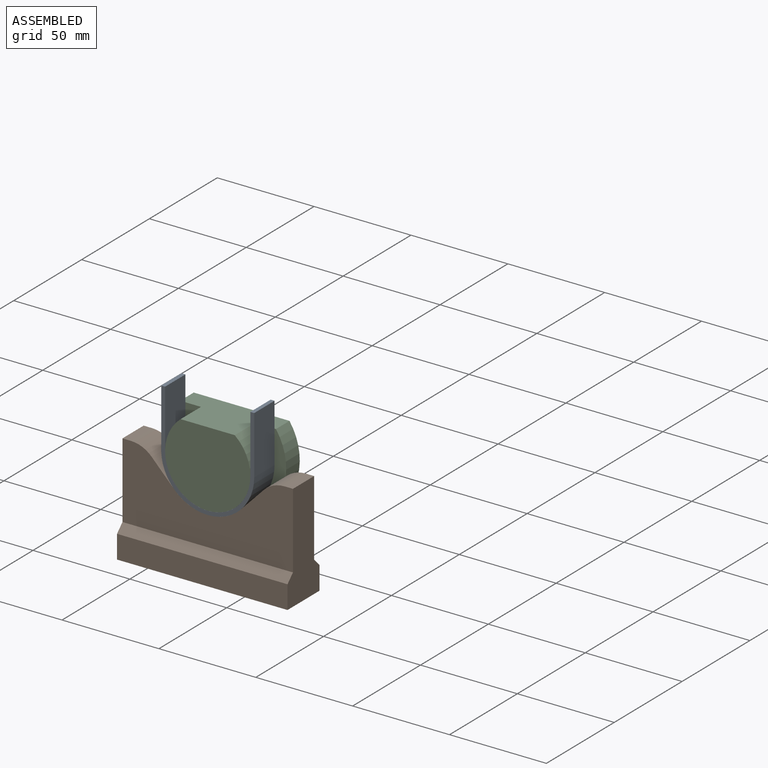
[diagram: assembled view]
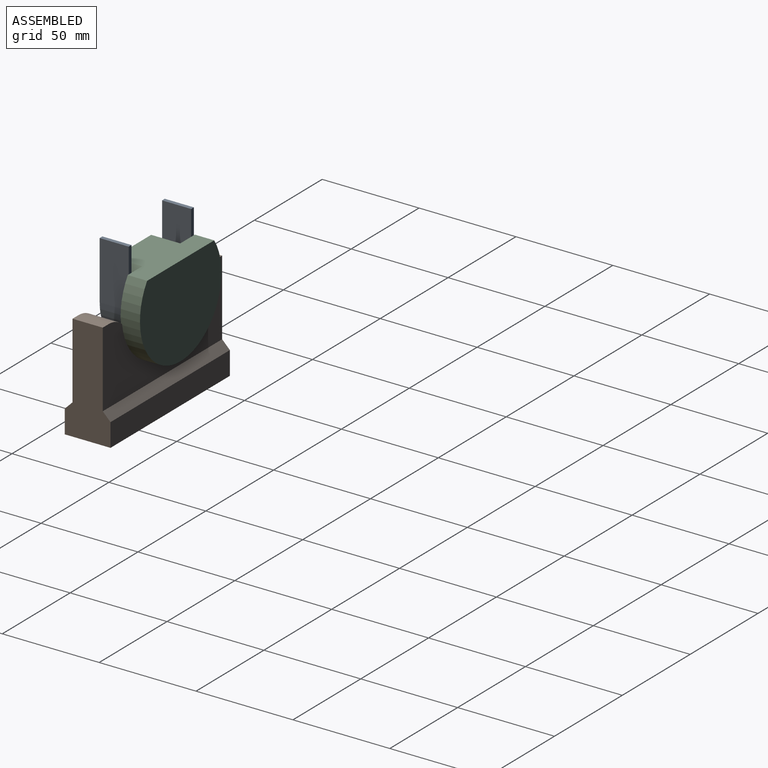
[diagram: assembled view, second angle]
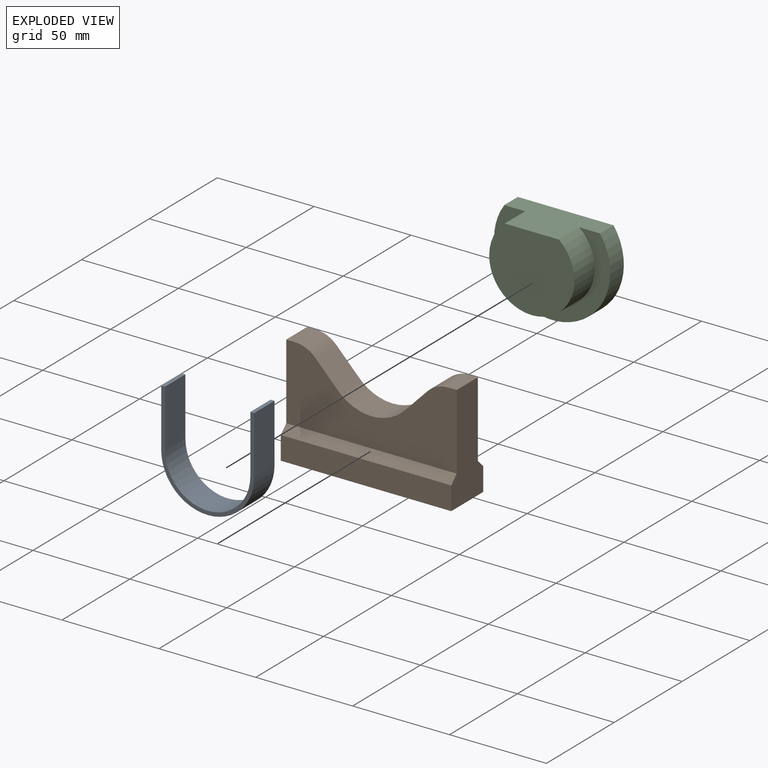
[diagram: exploded view]
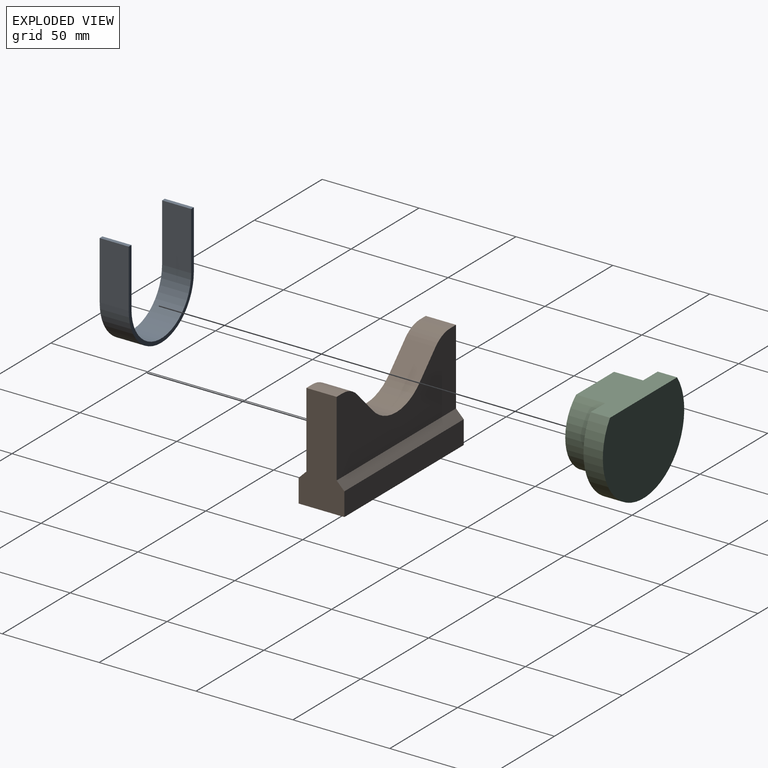
[diagram: exploded view, second angle]
ASSEMBLY  parts=3 mates=2
PART A: 10 faces, bbox 48x15x54 mm
  f0: plane 15x2mm, normal (0,0,1), area 30mm2, adj f1,f7,f8,f9
  f1: plane 30x15mm, normal (-1,0,0), area 450mm2, adj f0,f2,f8,f9
  f2: cylinder r=24mm len=48mm, axis (0,1,0), area 1131mm2, adj f1,f3,f8,f9
  f3: plane 30x15mm, normal (1,0,0), area 450mm2, adj f2,f4,f8,f9
  f4: plane 15x2mm, normal (0,0,1), area 30mm2, adj f3,f5,f8,f9
  f5: plane 30x15mm, normal (-1,0,0), area 450mm2, adj f4,f6,f8,f9
  f6: cylinder r=22mm len=44mm, axis (0,1,0), area 1036.7mm2, adj f5,f7,f8,f9
  f7: plane 30x15mm, normal (1,0,0), area 450mm2, adj f0,f6,f8,f9
  f8: plane 54x48mm, normal (0,-1,0), area 264.5mm2, adj f0,f1,f2,f3,f4,f5,f6,f7
  f9: plane 54x48mm, normal (0,1,0), area 264.5mm2, adj f0,f1,f2,f3,f4,f5,f6,f7
PART B: 22 faces, bbox 88x23.6x55 mm
  f0: plane 15.6x4.29mm, normal (0,0,1), area 67mm2, adj f1,f8,f9,f21
  f1: plane 55x23.6mm, normal (-1,0,0), area 970mm2, adj f0,f2,f8,f9,f10,f11,f12,f13
  f2: plane 88x23.6mm, normal (0,0,-1), area 1955.2mm2, adj f1,f3,f10,f11,f18,f19
  f3: plane 55x23.6mm, normal (1,0,0), area 970mm2, adj f2,f4,f8,f9,f10,f11,f12,f13
  f4: plane 15.6x4.29mm, normal (0,0,1), area 67mm2, adj f3,f8,f9,f20
  f5: plane 15.6x11.42mm, normal (-0.72,0,0.69), area 247.7mm2, adj f6,f8,f9,f20
  f6: cylinder r=24mm len=35.78mm, axis (0,1,0), area 629.8mm2, adj f5,f7,f8,f9
  f7: plane 15.6x11.42mm, normal (0.72,0,0.69), area 247.7mm2, adj f6,f8,f9,f21
  f8: plane 88x39mm, normal (0,-1,0), area 2403.7mm2, adj f0,f1,f3,f4,f5,f6,f7,f12
  f9: plane 88x39mm, normal (0,1,0), area 2403.7mm2, adj f0,f1,f3,f4,f5,f6,f7,f13
  f10: plane 88x12mm, normal (0,-1,0), area 1056mm2, adj f1,f2,f3,f12
  f11: plane 88x12mm, normal (0,1,0), area 1056mm2, adj f1,f2,f3,f13
  f12: plane 88x4mm, normal (0,-0.71,0.71), area 497.8mm2, adj f1,f3,f8,f10
  f13: plane 88x4mm, normal (0,0.71,0.71), area 497.8mm2, adj f1,f3,f9,f11
  f14: cylinder r=3.4mm len=24mm, axis (0,0,-1), area 512.7mm2, adj f15,f18
  f15: plane 6.8x6.8mm, normal (0,0,-1), area 36.3mm2, adj f14
  f16: cylinder r=3.4mm len=24mm, axis (0,0,-1), area 512.7mm2, adj f17,f19
  f17: plane 6.8x6.8mm, normal (0,0,-1), area 36.3mm2, adj f16
  f18: cone r=3.4mm half-angle=45deg, axis (0,0,-1), area 34.7mm2, adj f2,f14
  f19: cone r=3.4mm half-angle=45deg, axis (0,0,-1), area 34.7mm2, adj f2,f16
  f20: cylinder r=15mm len=15.6mm, axis (0,1,0), area 187.9mm2, adj f4,f5,f8,f9
  f21: cylinder r=15mm len=15.6mm, axis (0,1,0), area 187.9mm2, adj f0,f7,f8,f9
PART C: 6 faces, bbox 60x25x47 mm
  f0: plane 44x39mm, normal (0,-1,0), area 1425.1mm2, adj f1,f5
  f1: cylinder r=22mm len=44mm, axis (0,1,0), area 1619.6mm2, adj f0,f4,f5
  f2: cylinder r=30mm len=60mm, axis (0,-1,0), area 1304mm2, adj f3,f4,f5
  f3: plane 60x47mm, normal (0,1,0), area 2376.1mm2, adj f2,f5
  f4: plane 60x47mm, normal (0,-1,0), area 951mm2, adj f1,f2,f5
  f5: plane 49.44x25mm, normal (0,0,1), area 913.3mm2, adj f0,f1,f2,f3,f4
PLACE A t=(-19.29,-21.47,-1.29)mm
PLACE B t=(-19.29,-20.87,-1.29)mm
PLACE C t=(-19.29,-21.47,-1.29)mm
MATE planar C.f1 <-> A.f6  axis (0,-1,0) through (-19.29,-36.47,-1.29)mm
MATE planar A.f2 <-> B.f6  axis (0,-1,0) through (-19.29,-36.47,-1.29)mm
